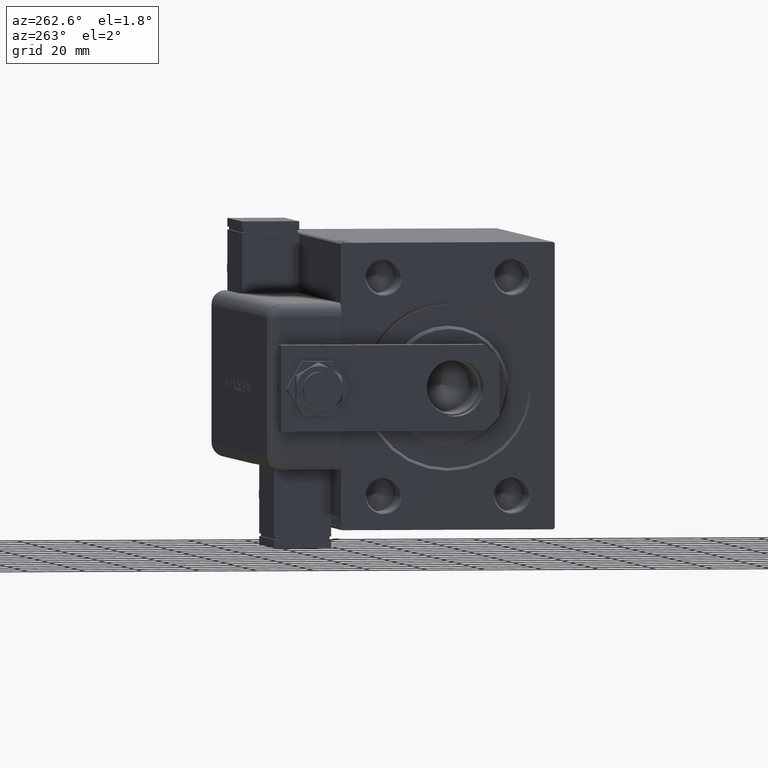
[diagram: clean part render]
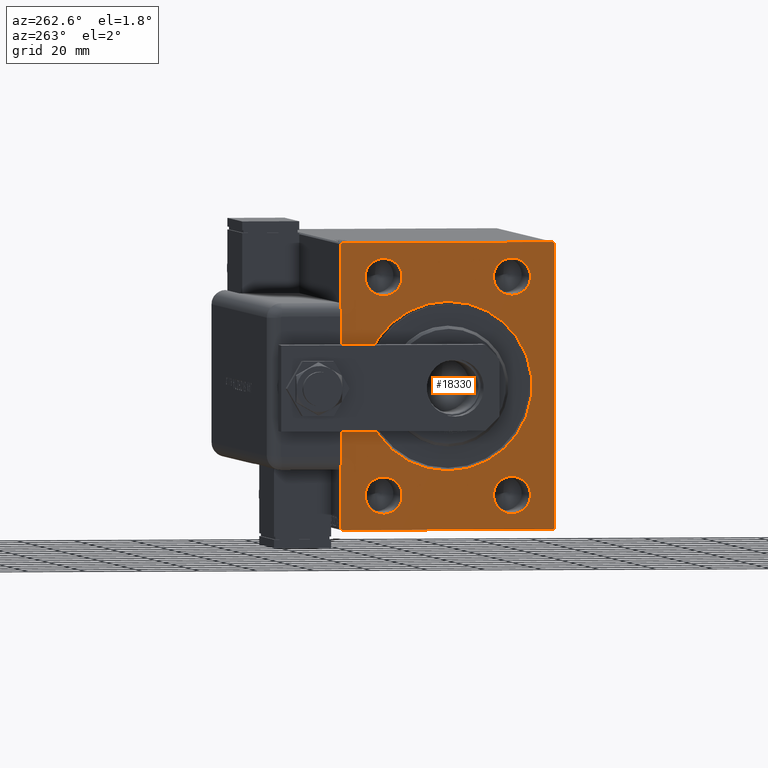
[diagram: same view with one face highlighted and labeled with its STEP entity id]
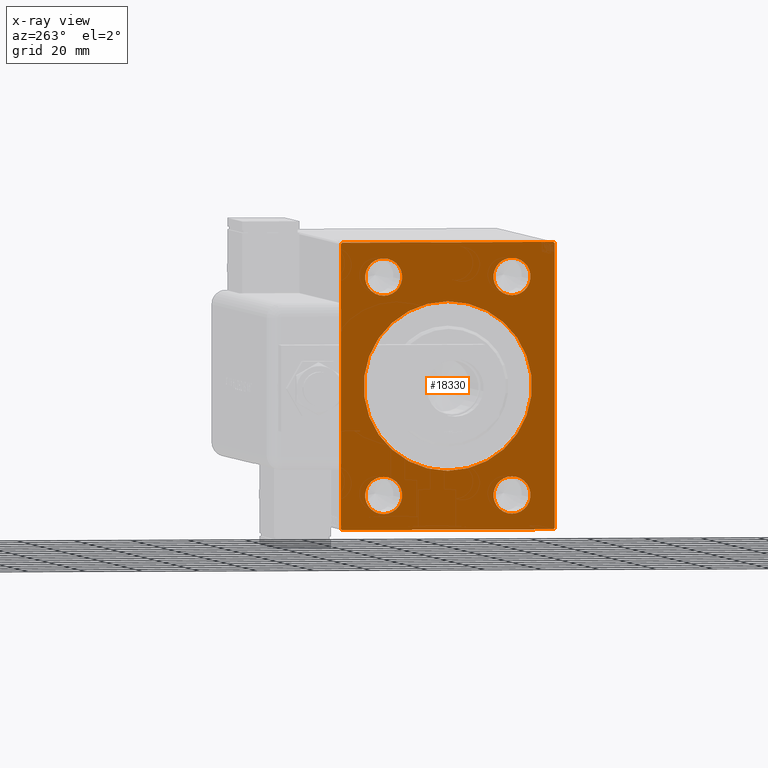
[diagram: x-ray of the same camera — body ghosted, the highlighted face saturated]
A machine part, auxiliary view. The second image highlights one B-rep face of the part: STEP entity #18330.
The next image is the same camera in x-ray: the body ghosted, the highlighted face saturated — about 0% of this face is hidden behind the body in this view.
In plain terms, the highlighted planar face has unit normal (1, 0, 0).
Its self-contained STEP definition (entity closure, byte-faithful):
#195 = VECTOR ( 'NONE', #29487, 1000.000000000000000 ) ;
#278 = CIRCLE ( 'NONE', #30460, 6.500000000000005329 ) ;
#1334 = VERTEX_POINT ( 'NONE', #10629 ) ;
#2705 = CARTESIAN_POINT ( 'NONE',  ( 0.000000000000000000, 0.000000000000000000, 29.50000000000002842 ) ) ;
#2720 = ORIENTED_EDGE ( 'NONE', *, *, #30274, .F. ) ;
#2949 = CARTESIAN_POINT ( 'NONE',  ( 0.000000000000000000, 37.49999999999999289, 49.50000000000000000 ) ) ;
#3299 = DIRECTION ( 'NONE',  ( 0.000000000000000000, 0.000000000000000000, -1.000000000000000000 ) ) ;
#3327 = CIRCLE ( 'NONE', #57815, 6.500000000000005329 ) ;
#3679 = PLANE ( 'NONE',  #39522 ) ;
#3699 = LINE ( 'NONE', #21995, #50784 ) ;
#4267 = FACE_BOUND ( 'NONE', #54647, .T. ) ;
#4802 = VERTEX_POINT ( 'NONE', #24877 ) ;
#4965 = VERTEX_POINT ( 'NONE', #59125 ) ;
#5270 = CARTESIAN_POINT ( 'NONE',  ( 0.000000000000000000, -37.50000000000000000, -50.00000000000000000 ) ) ;
#5540 = EDGE_CURVE ( 'NONE', #53596, #31192, #47899, .T. ) ;
#5569 = CIRCLE ( 'NONE', #39635, 29.50000000000002842 ) ;
#5871 = DIRECTION ( 'NONE',  ( -0.000000000000000000, 0.7071067811865425767, -0.7071067811865525687 ) ) ;
#6026 = LINE ( 'NONE', #10301, #195 ) ;
#6827 = EDGE_CURVE ( 'NONE', #7246, #13652, #278, .T. ) ;
#7246 = VERTEX_POINT ( 'NONE', #33647 ) ;
#7337 = LINE ( 'NONE', #39345, #21824 ) ;
#7683 = DIRECTION ( 'NONE',  ( 0.000000000000000000, -0.7071067811865230368, -0.7071067811865721087 ) ) ;
#7876 = DIRECTION ( 'NONE',  ( -0.000000000000000000, -0.7071067811865474617, 0.7071067811865474617 ) ) ;
#8136 = CARTESIAN_POINT ( 'NONE',  ( 0.000000000000000000, 37.49999999999999289, 50.00000000000000711 ) ) ;
#8310 = ORIENTED_EDGE ( 'NONE', *, *, #42253, .T. ) ;
#10301 = CARTESIAN_POINT ( 'NONE',  ( 0.000000000000000000, 37.50000000000000711, -50.00000000000000000 ) ) ;
#10629 = CARTESIAN_POINT ( 'NONE',  ( 0.000000000000000000, 37.00000000000001421, -50.00000000000000000 ) ) ;
#10787 = CARTESIAN_POINT ( 'NONE',  ( 0.000000000000000000, -22.50000000000000000, -38.00000000000000711 ) ) ;
#10952 = DIRECTION ( 'NONE',  ( 0.000000000000000000, 0.000000000000000000, -1.000000000000000000 ) ) ;
#11226 = ORIENTED_EDGE ( 'NONE', *, *, #52772, .T. ) ;
#12206 = DIRECTION ( 'NONE',  ( 1.000000000000000000, 0.000000000000000000, 0.000000000000000000 ) ) ;
#12256 = ORIENTED_EDGE ( 'NONE', *, *, #29669, .T. ) ;
#12313 = CARTESIAN_POINT ( 'NONE',  ( 0.000000000000000000, -37.50000000000000000, 49.49999999999998579 ) ) ;
#12469 = EDGE_CURVE ( 'NONE', #47715, #40092, #56936, .T. ) ;
#12709 = DIRECTION ( 'NONE',  ( 0.000000000000000000, -1.000000000000000000, -2.775557561562891844E-16 ) ) ;
#13124 = CARTESIAN_POINT ( 'NONE',  ( 0.000000000000000000, 0.000000000000000000, 0.000000000000000000 ) ) ;
#13568 = ORIENTED_EDGE ( 'NONE', *, *, #55491, .T. ) ;
#13638 = EDGE_CURVE ( 'NONE', #41197, #1334, #18990, .T. ) ;
#13652 = VERTEX_POINT ( 'NONE', #29029 ) ;
#14039 = DIRECTION ( 'NONE',  ( 0.000000000000000000, 0.000000000000000000, -1.000000000000000000 ) ) ;
#15111 = AXIS2_PLACEMENT_3D ( 'NONE', #56462, #29046, #47622 ) ;
#16167 = EDGE_LOOP ( 'NONE', ( #13568, #20402 ) ) ;
#16631 = DIRECTION ( 'NONE',  ( 1.000000000000000000, 0.000000000000000000, 0.000000000000000000 ) ) ;
#17522 = CARTESIAN_POINT ( 'NONE',  ( 0.000000000000000000, -22.50000000000000000, 31.49999999999998579 ) ) ;
#17908 = ORIENTED_EDGE ( 'NONE', *, *, #6827, .T. ) ;
#17946 = EDGE_CURVE ( 'NONE', #4965, #42217, #42380, .T. ) ;
#18188 = VERTEX_POINT ( 'NONE', #47344 ) ;
#18330 = ADVANCED_FACE ( 'NONE', ( #32610, #23488, #31718, #4267, #45425, #23180 ), #3679, .F. ) ;
#18990 = LINE ( 'NONE', #5270, #20034 ) ;
#19672 = EDGE_LOOP ( 'NONE', ( #12256, #20403 ) ) ;
#20034 = VECTOR ( 'NONE', #37575, 1000.000000000000000 ) ;
#20402 = ORIENTED_EDGE ( 'NONE', *, *, #17946, .T. ) ;
#20403 = ORIENTED_EDGE ( 'NONE', *, *, #12469, .T. ) ;
#20662 = CARTESIAN_POINT ( 'NONE',  ( 0.000000000000000000, 0.000000000000000000, 0.000000000000000000 ) ) ;
#20988 = AXIS2_PLACEMENT_3D ( 'NONE', #52365, #16631, #54089 ) ;
#21087 = VERTEX_POINT ( 'NONE', #2949 ) ;
#21306 = CARTESIAN_POINT ( 'NONE',  ( 0.000000000000000000, 22.50000000000000000, 37.99999999999999289 ) ) ;
#21824 = VECTOR ( 'NONE', #57901, 1000.000000000000000 ) ;
#21995 = CARTESIAN_POINT ( 'NONE',  ( 0.000000000000000000, 37.50000000000000711, -49.49999999999997158 ) ) ;
#22244 = ORIENTED_EDGE ( 'NONE', *, *, #31178, .T. ) ;
#22584 = DIRECTION ( 'NONE',  ( 1.000000000000000000, 0.000000000000000000, 0.000000000000000000 ) ) ;
#22631 = VERTEX_POINT ( 'NONE', #35093 ) ;
#22663 = ORIENTED_EDGE ( 'NONE', *, *, #5540, .T. ) ;
#23180 = FACE_OUTER_BOUND ( 'NONE', #40991, .T. ) ;
#23488 = FACE_BOUND ( 'NONE', #58892, .T. ) ;
#24231 = VECTOR ( 'NONE', #53748, 1000.000000000000000 ) ;
#24282 = ORIENTED_EDGE ( 'NONE', *, *, #25650, .T. ) ;
#24508 = DIRECTION ( 'NONE',  ( 0.000000000000000000, 0.000000000000000000, -1.000000000000000000 ) ) ;
#24877 = CARTESIAN_POINT ( 'NONE',  ( 0.000000000000000000, -37.50000000000000000, -49.49999999999997158 ) ) ;
#25322 = EDGE_CURVE ( 'NONE', #22631, #21087, #6026, .T. ) ;
#25567 = CARTESIAN_POINT ( 'NONE',  ( 0.000000000000000000, -22.50000000000000000, -31.50000000000000000 ) ) ;
#25650 = EDGE_CURVE ( 'NONE', #22631, #1334, #3699, .T. ) ;
#25695 = AXIS2_PLACEMENT_3D ( 'NONE', #49148, #54622, #53729 ) ;
#27343 = CARTESIAN_POINT ( 'NONE',  ( 0.000000000000000000, -37.00000000000000000, -50.00000000000000000 ) ) ;
#29029 = CARTESIAN_POINT ( 'NONE',  ( 0.000000000000000000, 22.50000000000000000, 44.50000000000000000 ) ) ;
#29046 = DIRECTION ( 'NONE',  ( 1.000000000000000000, 0.000000000000000000, 0.000000000000000000 ) ) ;
#29487 = DIRECTION ( 'NONE',  ( 0.000000000000000000, -1.387778780781445676E-16, 1.000000000000000000 ) ) ;
#29669 = EDGE_CURVE ( 'NONE', #40092, #47715, #56807, .T. ) ;
#29831 = VERTEX_POINT ( 'NONE', #30775 ) ;
#30274 = EDGE_CURVE ( 'NONE', #29831, #4802, #7337, .T. ) ;
#30460 = AXIS2_PLACEMENT_3D ( 'NONE', #49908, #59037, #31034 ) ;
#30540 = EDGE_CURVE ( 'NONE', #41197, #4802, #49903, .T. ) ;
#30618 = EDGE_CURVE ( 'NONE', #42197, #18188, #3327, .T. ) ;
#30775 = CARTESIAN_POINT ( 'NONE',  ( 0.000000000000000000, -37.50000000000000000, 49.49999999999998579 ) ) ;
#31034 = DIRECTION ( 'NONE',  ( 0.000000000000000000, 0.000000000000000000, -1.000000000000000000 ) ) ;
#31178 = EDGE_CURVE ( 'NONE', #18188, #42197, #44208, .T. ) ;
#31192 = VERTEX_POINT ( 'NONE', #51496 ) ;
#31718 = FACE_BOUND ( 'NONE', #19672, .T. ) ;
#31765 = ORIENTED_EDGE ( 'NONE', *, *, #13638, .F. ) ;
#31851 = CIRCLE ( 'NONE', #60054, 6.500000000000005329 ) ;
#32116 = CARTESIAN_POINT ( 'NONE',  ( 0.000000000000000000, -36.99999999999996447, 49.99999999999998579 ) ) ;
#32610 = FACE_BOUND ( 'NONE', #16167, .T. ) ;
#33298 = LINE ( 'NONE', #47309, #52454 ) ;
#33647 = CARTESIAN_POINT ( 'NONE',  ( 0.000000000000000000, 22.50000000000000000, 31.49999999999998579 ) ) ;
#33844 = CARTESIAN_POINT ( 'NONE',  ( 0.000000000000000000, 22.50000000000000000, -31.50000000000000000 ) ) ;
#34046 = CARTESIAN_POINT ( 'NONE',  ( 0.000000000000000000, -22.50000000000000000, 44.50000000000000000 ) ) ;
#35093 = CARTESIAN_POINT ( 'NONE',  ( 0.000000000000000000, 37.50000000000000711, -49.49999999999997158 ) ) ;
#35660 = VECTOR ( 'NONE', #12709, 1000.000000000000000 ) ;
#35764 = LINE ( 'NONE', #12313, #24231 ) ;
#35820 = ORIENTED_EDGE ( 'NONE', *, *, #58933, .T. ) ;
#36880 = DIRECTION ( 'NONE',  ( 1.000000000000000000, 0.000000000000000000, 0.000000000000000000 ) ) ;
#36894 = CARTESIAN_POINT ( 'NONE',  ( 0.000000000000000000, 22.50000000000000000, -38.00000000000000711 ) ) ;
#37575 = DIRECTION ( 'NONE',  ( 0.000000000000000000, 1.000000000000000000, 0.000000000000000000 ) ) ;
#38822 = DIRECTION ( 'NONE',  ( 1.000000000000000000, 0.000000000000000000, 0.000000000000000000 ) ) ;
#39345 = CARTESIAN_POINT ( 'NONE',  ( 0.000000000000000000, -37.50000000000000000, 49.99999999999998579 ) ) ;
#39522 = AXIS2_PLACEMENT_3D ( 'NONE', #13124, #36880, #14039 ) ;
#39635 = AXIS2_PLACEMENT_3D ( 'NONE', #20662, #44095, #48667 ) ;
#40092 = VERTEX_POINT ( 'NONE', #34046 ) ;
#40248 = DIRECTION ( 'NONE',  ( 0.000000000000000000, 0.000000000000000000, -1.000000000000000000 ) ) ;
#40991 = EDGE_LOOP ( 'NONE', ( #2720, #35820, #55889, #46505, #45407, #24282, #31765, #49756 ) ) ;
#41040 = VERTEX_POINT ( 'NONE', #32116 ) ;
#41197 = VERTEX_POINT ( 'NONE', #42341 ) ;
#41247 = EDGE_LOOP ( 'NONE', ( #22663, #11226 ) ) ;
#41482 = CIRCLE ( 'NONE', #54144, 6.500000000000005329 ) ;
#42197 = VERTEX_POINT ( 'NONE', #25567 ) ;
#42217 = VERTEX_POINT ( 'NONE', #2705 ) ;
#42253 = EDGE_CURVE ( 'NONE', #13652, #7246, #31851, .T. ) ;
#42341 = CARTESIAN_POINT ( 'NONE',  ( 0.000000000000000000, -37.00000000000000000, -50.00000000000000000 ) ) ;
#42380 = CIRCLE ( 'NONE', #20988, 29.50000000000002842 ) ;
#43251 = VECTOR ( 'NONE', #7876, 1000.000000000000114 ) ;
#44095 = DIRECTION ( 'NONE',  ( 1.000000000000000000, 0.000000000000000000, 0.000000000000000000 ) ) ;
#44141 = DIRECTION ( 'NONE',  ( 1.000000000000000000, 0.000000000000000000, 0.000000000000000000 ) ) ;
#44208 = CIRCLE ( 'NONE', #45169, 6.500000000000005329 ) ;
#45169 = AXIS2_PLACEMENT_3D ( 'NONE', #47211, #56943, #10952 ) ;
#45208 = VERTEX_POINT ( 'NONE', #47714 ) ;
#45407 = ORIENTED_EDGE ( 'NONE', *, *, #25322, .F. ) ;
#45425 = FACE_BOUND ( 'NONE', #41247, .T. ) ;
#46505 = ORIENTED_EDGE ( 'NONE', *, *, #60232, .T. ) ;
#47211 = CARTESIAN_POINT ( 'NONE',  ( 0.000000000000000000, -22.50000000000000000, -38.00000000000000711 ) ) ;
#47309 = CARTESIAN_POINT ( 'NONE',  ( 0.000000000000000000, 36.99999999999999289, 50.00000000000000711 ) ) ;
#47344 = CARTESIAN_POINT ( 'NONE',  ( 0.000000000000000000, -22.50000000000000000, -44.50000000000001421 ) ) ;
#47622 = DIRECTION ( 'NONE',  ( 0.000000000000000000, 0.000000000000000000, -1.000000000000000000 ) ) ;
#47714 = CARTESIAN_POINT ( 'NONE',  ( 0.000000000000000000, 36.99999999999999289, 50.00000000000000711 ) ) ;
#47715 = VERTEX_POINT ( 'NONE', #17522 ) ;
#47899 = CIRCLE ( 'NONE', #59572, 6.500000000000005329 ) ;
#48667 = DIRECTION ( 'NONE',  ( 0.000000000000000000, 0.000000000000000000, -1.000000000000000000 ) ) ;
#49148 = CARTESIAN_POINT ( 'NONE',  ( 0.000000000000000000, -22.50000000000000000, 37.99999999999999289 ) ) ;
#49756 = ORIENTED_EDGE ( 'NONE', *, *, #30540, .T. ) ;
#49903 = LINE ( 'NONE', #27343, #43251 ) ;
#49908 = CARTESIAN_POINT ( 'NONE',  ( 0.000000000000000000, 22.50000000000000000, 37.99999999999999289 ) ) ;
#50162 = LINE ( 'NONE', #8136, #35660 ) ;
#50784 = VECTOR ( 'NONE', #7683, 1000.000000000000000 ) ;
#50804 = ORIENTED_EDGE ( 'NONE', *, *, #30618, .T. ) ;
#50915 = DIRECTION ( 'NONE',  ( 0.000000000000000000, 0.000000000000000000, -1.000000000000000000 ) ) ;
#51496 = CARTESIAN_POINT ( 'NONE',  ( 0.000000000000000000, 22.50000000000000000, -44.50000000000001421 ) ) ;
#52365 = CARTESIAN_POINT ( 'NONE',  ( 0.000000000000000000, 0.000000000000000000, 0.000000000000000000 ) ) ;
#52454 = VECTOR ( 'NONE', #5871, 999.9999999999998863 ) ;
#52772 = EDGE_CURVE ( 'NONE', #31192, #53596, #41482, .T. ) ;
#52897 = EDGE_CURVE ( 'NONE', #45208, #41040, #50162, .T. ) ;
#53596 = VERTEX_POINT ( 'NONE', #33844 ) ;
#53729 = DIRECTION ( 'NONE',  ( 0.000000000000000000, 0.000000000000000000, -1.000000000000000000 ) ) ;
#53748 = DIRECTION ( 'NONE',  ( -0.000000000000000000, 0.7071067811865721087, 0.7071067811865230368 ) ) ;
#54089 = DIRECTION ( 'NONE',  ( 0.000000000000000000, 0.000000000000000000, -1.000000000000000000 ) ) ;
#54144 = AXIS2_PLACEMENT_3D ( 'NONE', #36894, #22584, #50915 ) ;
#54622 = DIRECTION ( 'NONE',  ( 1.000000000000000000, 0.000000000000000000, 0.000000000000000000 ) ) ;
#54647 = EDGE_LOOP ( 'NONE', ( #8310, #17908 ) ) ;
#54825 = CARTESIAN_POINT ( 'NONE',  ( 0.000000000000000000, 22.50000000000000000, -38.00000000000000711 ) ) ;
#55491 = EDGE_CURVE ( 'NONE', #42217, #4965, #5569, .T. ) ;
#55889 = ORIENTED_EDGE ( 'NONE', *, *, #52897, .F. ) ;
#56462 = CARTESIAN_POINT ( 'NONE',  ( 0.000000000000000000, -22.50000000000000000, 37.99999999999999289 ) ) ;
#56807 = CIRCLE ( 'NONE', #25695, 6.500000000000005329 ) ;
#56936 = CIRCLE ( 'NONE', #15111, 6.500000000000005329 ) ;
#56943 = DIRECTION ( 'NONE',  ( 1.000000000000000000, 0.000000000000000000, 0.000000000000000000 ) ) ;
#57815 = AXIS2_PLACEMENT_3D ( 'NONE', #10787, #38822, #24508 ) ;
#57901 = DIRECTION ( 'NONE',  ( 0.000000000000000000, 0.000000000000000000, -1.000000000000000000 ) ) ;
#58892 = EDGE_LOOP ( 'NONE', ( #50804, #22244 ) ) ;
#58933 = EDGE_CURVE ( 'NONE', #29831, #41040, #35764, .T. ) ;
#59037 = DIRECTION ( 'NONE',  ( 1.000000000000000000, 0.000000000000000000, 0.000000000000000000 ) ) ;
#59125 = CARTESIAN_POINT ( 'NONE',  ( 0.000000000000000000, 3.612708057484695548E-15, -29.50000000000002842 ) ) ;
#59572 = AXIS2_PLACEMENT_3D ( 'NONE', #54825, #12206, #40248 ) ;
#60054 = AXIS2_PLACEMENT_3D ( 'NONE', #21306, #44141, #3299 ) ;
#60232 = EDGE_CURVE ( 'NONE', #45208, #21087, #33298, .T. ) ;